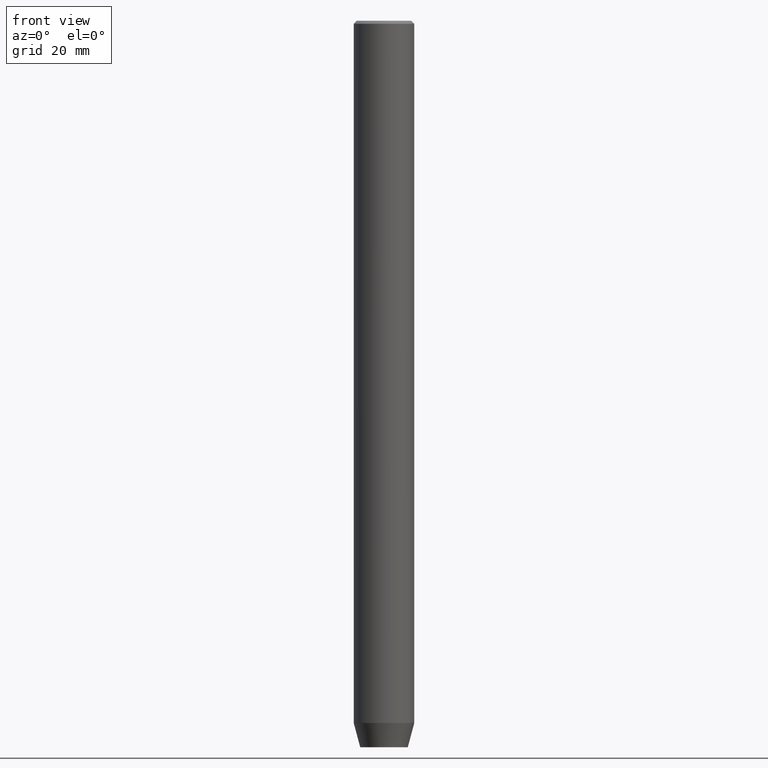
[diagram: clean part render]
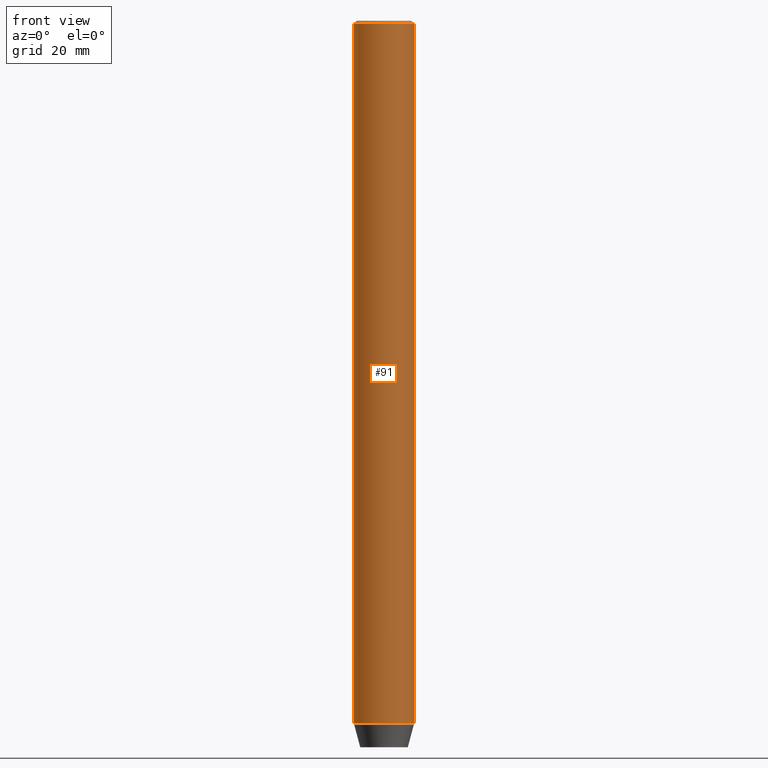
[diagram: same view with one face highlighted and labeled with its STEP entity id]
A machine part, front view. The second image highlights one B-rep face of the part: STEP entity #91.
In plain terms, the highlighted cylindrical surface (edge-blend (fillet) strip) has radius 5 mm, axis along (-0, -0, 1).
Its self-contained STEP definition (entity closure, byte-faithful):
#23 = VERTEX_POINT ( 'NONE', #554 ) ;
#44 = AXIS2_PLACEMENT_3D ( 'NONE', #525, #162, #337 ) ;
#68 = LINE ( 'NONE', #374, #486 ) ;
#75 = FACE_OUTER_BOUND ( 'NONE', #577, .T. ) ;
#77 = DIRECTION ( 'NONE',  ( -0.000000000000000000, -0.000000000000000000, 1.000000000000000000 ) ) ;
#91 = ADVANCED_FACE ( 'NONE', ( #75 ), #417, .T. ) ;
#110 = DIRECTION ( 'NONE',  ( -0.000000000000000000, -0.000000000000000000, 1.000000000000000000 ) ) ;
#122 = CARTESIAN_POINT ( 'NONE',  ( -5.000000000000000000, 6.123233995736766282E-16, -0.5000000000000135447 ) ) ;
#138 = EDGE_CURVE ( 'NONE', #411, #161, #303, .T. ) ;
#161 = VERTEX_POINT ( 'NONE', #122 ) ;
#162 = DIRECTION ( 'NONE',  ( -0.000000000000000000, -0.000000000000000000, 1.000000000000000000 ) ) ;
#168 = DIRECTION ( 'NONE',  ( 1.000000000000000000, 0.000000000000000000, 0.000000000000000000 ) ) ;
#197 = AXIS2_PLACEMENT_3D ( 'NONE', #563, #110, #559 ) ;
#202 = ORIENTED_EDGE ( 'NONE', *, *, #138, .T. ) ;
#206 = VECTOR ( 'NONE', #77, 1000.000000000000000 ) ;
#208 = CARTESIAN_POINT ( 'NONE',  ( -5.000000000000000000, 6.123233995736766282E-16, 0.000000000000000000 ) ) ;
#270 = ORIENTED_EDGE ( 'NONE', *, *, #398, .F. ) ;
#303 = CIRCLE ( 'NONE', #542, 5.000000000000000000 ) ;
#323 = EDGE_CURVE ( 'NONE', #345, #411, #68, .T. ) ;
#337 = DIRECTION ( 'NONE',  ( 1.000000000000000000, 0.000000000000000000, 0.000000000000000000 ) ) ;
#339 = CIRCLE ( 'NONE', #44, 5.000000000000000000 ) ;
#342 = DIRECTION ( 'NONE',  ( 0.000000000000000000, 0.000000000000000000, -1.000000000000000000 ) ) ;
#345 = VERTEX_POINT ( 'NONE', #529 ) ;
#374 = CARTESIAN_POINT ( 'NONE',  ( 5.000000000000000000, 0.000000000000000000, 0.000000000000000000 ) ) ;
#388 = CARTESIAN_POINT ( 'NONE',  ( 5.000000000000000000, 0.000000000000000000, -0.5000000000000135447 ) ) ;
#392 = ORIENTED_EDGE ( 'NONE', *, *, #465, .T. ) ;
#398 = EDGE_CURVE ( 'NONE', #23, #161, #571, .T. ) ;
#411 = VERTEX_POINT ( 'NONE', #388 ) ;
#417 = CYLINDRICAL_SURFACE ( 'NONE', #197, 5.000000000000000000 ) ;
#442 = ORIENTED_EDGE ( 'NONE', *, *, #323, .T. ) ;
#465 = EDGE_CURVE ( 'NONE', #23, #345, #339, .T. ) ;
#486 = VECTOR ( 'NONE', #562, 1000.000000000000000 ) ;
#519 = CARTESIAN_POINT ( 'NONE',  ( 0.000000000000000000, 0.000000000000000000, -0.5000000000000135447 ) ) ;
#525 = CARTESIAN_POINT ( 'NONE',  ( 0.000000000000000000, 0.000000000000000000, -115.9999999999999858 ) ) ;
#529 = CARTESIAN_POINT ( 'NONE',  ( 5.000000000000000000, 0.000000000000000000, -115.9999999999999858 ) ) ;
#542 = AXIS2_PLACEMENT_3D ( 'NONE', #519, #342, #168 ) ;
#554 = CARTESIAN_POINT ( 'NONE',  ( -5.000000000000000000, 6.123233995736766282E-16, -115.9999999999999858 ) ) ;
#559 = DIRECTION ( 'NONE',  ( 1.000000000000000000, 0.000000000000000000, 0.000000000000000000 ) ) ;
#562 = DIRECTION ( 'NONE',  ( -0.000000000000000000, -0.000000000000000000, 1.000000000000000000 ) ) ;
#563 = CARTESIAN_POINT ( 'NONE',  ( 0.000000000000000000, 0.000000000000000000, 0.000000000000000000 ) ) ;
#571 = LINE ( 'NONE', #208, #206 ) ;
#577 = EDGE_LOOP ( 'NONE', ( #270, #392, #442, #202 ) ) ;